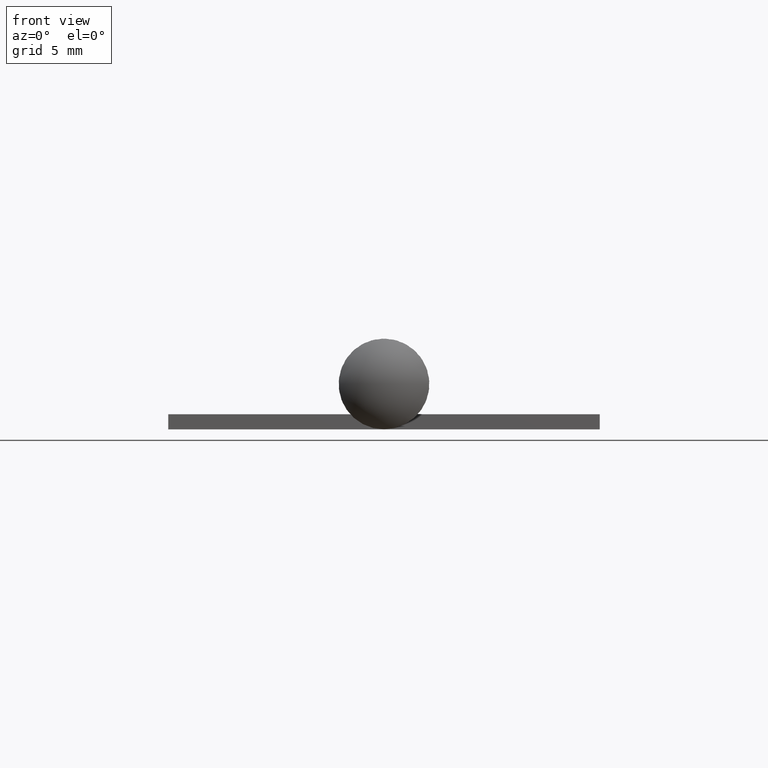
[diagram: clean part render]
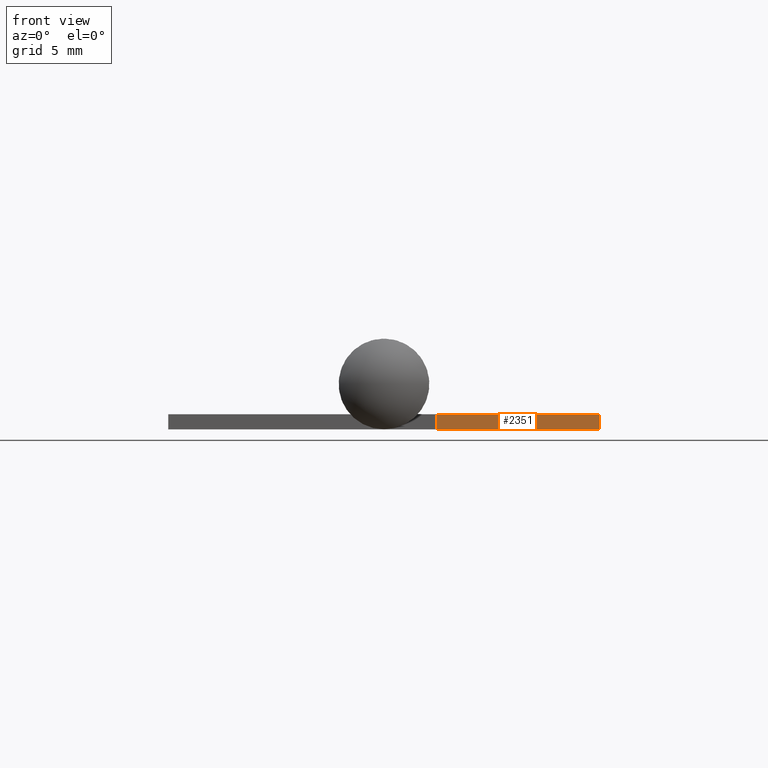
[diagram: same view with one face highlighted and labeled with its STEP entity id]
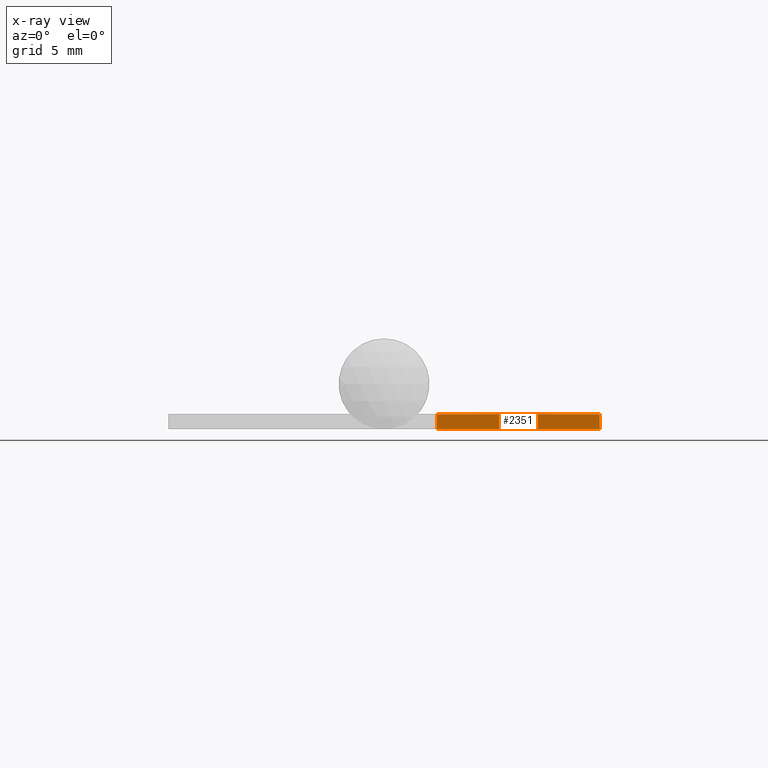
[diagram: x-ray of the same camera — body ghosted, the highlighted face saturated]
A machine part, front view. The second image highlights one B-rep face of the part: STEP entity #2351.
The next image is the same camera in x-ray: the body ghosted, the highlighted face saturated — about 0% of this face is hidden behind the body in this view.
In plain terms, the highlighted planar face has unit normal (0, 1, 0).
Its self-contained STEP definition (entity closure, byte-faithful):
#420 = EDGE_CURVE ( 'NONE', #10159, #6763, #4434, .T. ) ;
#772 = ORIENTED_EDGE ( 'NONE', *, *, #4624, .T. ) ;
#1125 = DIRECTION ( 'NONE',  ( 1.000000000000000000, -0.000000000000000000, -1.192622389734055124E-16 ) ) ;
#1212 = VECTOR ( 'NONE', #1125, 1000.000000000000000 ) ;
#1217 = LINE ( 'NONE', #2483, #5587 ) ;
#2232 = VERTEX_POINT ( 'NONE', #10816 ) ;
#2351 = ADVANCED_FACE ( 'NONE', ( #7518 ), #11083, .F. ) ;
#2483 = CARTESIAN_POINT ( 'NONE',  ( -4.549999999999999822, 12.50000000000000000, 2.100000000000000089 ) ) ;
#2537 = CARTESIAN_POINT ( 'NONE',  ( -4.549999999999999822, 12.50000000000000000, 0.7000000000000009548 ) ) ;
#2645 = DIRECTION ( 'NONE',  ( -1.301042606982605321E-16, 0.000000000000000000, -1.000000000000000000 ) ) ;
#2862 = CARTESIAN_POINT ( 'NONE',  ( -2.099999999999999645, 12.50000000000000000, 0.000000000000000000 ) ) ;
#3107 = VERTEX_POINT ( 'NONE', #2537 ) ;
#3672 = LINE ( 'NONE', #5465, #1212 ) ;
#4274 = CARTESIAN_POINT ( 'NONE',  ( -12.09999999999999964, 12.50000000000000000, 1.301042606982605321E-15 ) ) ;
#4345 = ORIENTED_EDGE ( 'NONE', *, *, #4488, .T. ) ;
#4434 = LINE ( 'NONE', #2862, #4951 ) ;
#4488 = EDGE_CURVE ( 'NONE', #6763, #2232, #8188, .T. ) ;
#4624 = EDGE_CURVE ( 'NONE', #2232, #3107, #3672, .T. ) ;
#4781 = AXIS2_PLACEMENT_3D ( 'NONE', #9189, #10279, #7734 ) ;
#4951 = VECTOR ( 'NONE', #5752, 1000.000000000000000 ) ;
#5465 = CARTESIAN_POINT ( 'NONE',  ( -2.099999999999999645, 12.50000000000000000, 0.7000000000000000666 ) ) ;
#5587 = VECTOR ( 'NONE', #2645, 1000.000000000000000 ) ;
#5752 = DIRECTION ( 'NONE',  ( -1.000000000000000000, 0.000000000000000000, 1.301042606982605321E-16 ) ) ;
#6763 = VERTEX_POINT ( 'NONE', #4274 ) ;
#6967 = VECTOR ( 'NONE', #9537, 1000.000000000000000 ) ;
#7081 = ORIENTED_EDGE ( 'NONE', *, *, #420, .T. ) ;
#7518 = FACE_OUTER_BOUND ( 'NONE', #8942, .T. ) ;
#7734 = DIRECTION ( 'NONE',  ( 0.000000000000000000, -0.000000000000000000, -1.000000000000000000 ) ) ;
#7756 = CARTESIAN_POINT ( 'NONE',  ( -12.09999999999999787, 12.50000000000000000, 0.7000000000000012879 ) ) ;
#8188 = LINE ( 'NONE', #7756, #6967 ) ;
#8269 = ORIENTED_EDGE ( 'NONE', *, *, #10379, .T. ) ;
#8942 = EDGE_LOOP ( 'NONE', ( #772, #8269, #7081, #4345 ) ) ;
#9189 = CARTESIAN_POINT ( 'NONE',  ( -2.100000000000000089, 12.50000000000000000, 2.100000000000000089 ) ) ;
#9537 = DIRECTION ( 'NONE',  ( 2.478176394252581732E-15, -0.000000000000000000, 1.000000000000000000 ) ) ;
#9756 = CARTESIAN_POINT ( 'NONE',  ( -4.549999999999999822, 12.50000000000000000, 3.187554387107384022E-16 ) ) ;
#10159 = VERTEX_POINT ( 'NONE', #9756 ) ;
#10279 = DIRECTION ( 'NONE',  ( 0.000000000000000000, -1.000000000000000000, 0.000000000000000000 ) ) ;
#10379 = EDGE_CURVE ( 'NONE', #3107, #10159, #1217, .T. ) ;
#10816 = CARTESIAN_POINT ( 'NONE',  ( -12.09999999999999787, 12.50000000000000000, 0.7000000000000012879 ) ) ;
#11083 = PLANE ( 'NONE',  #4781 ) ;